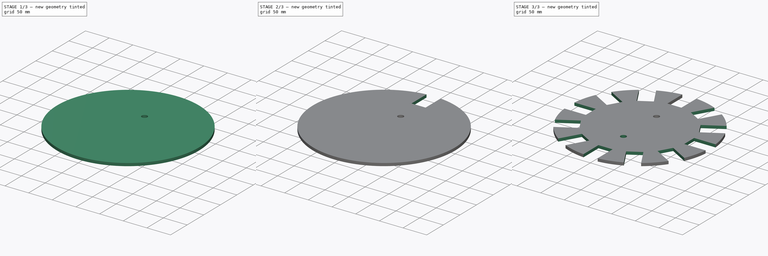
[diagram: build sequence overview — one tinted view per stage of 3, left to right]
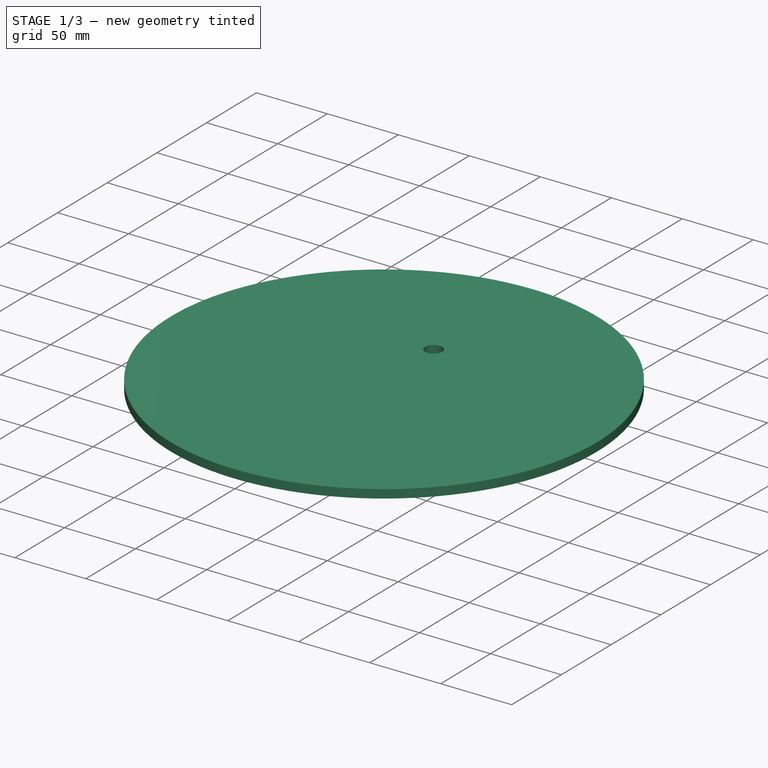
[diagram: stage 1 of 3 — iso view after this stage's code; geometry added in this stage tinted green]
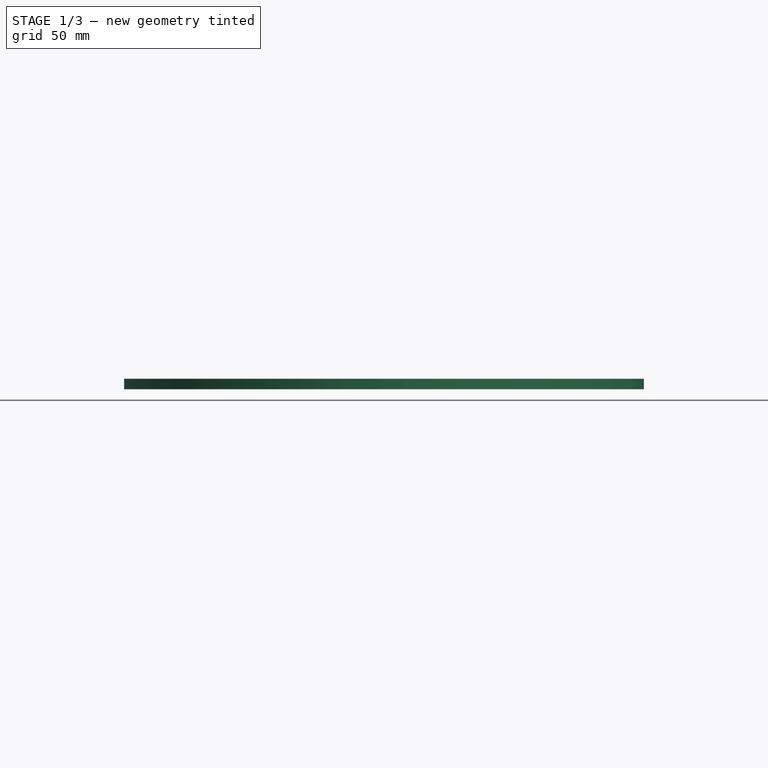
[diagram: stage 1 of 3 — front view after this stage's code; geometry added in this stage tinted green]
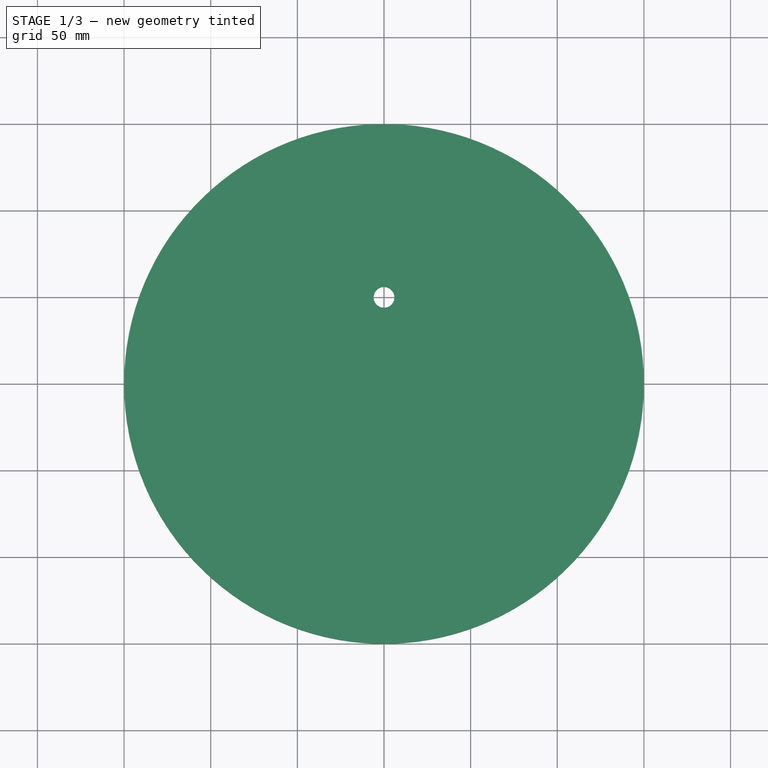
[diagram: stage 1 of 3 — top view after this stage's code; geometry added in this stage tinted green]
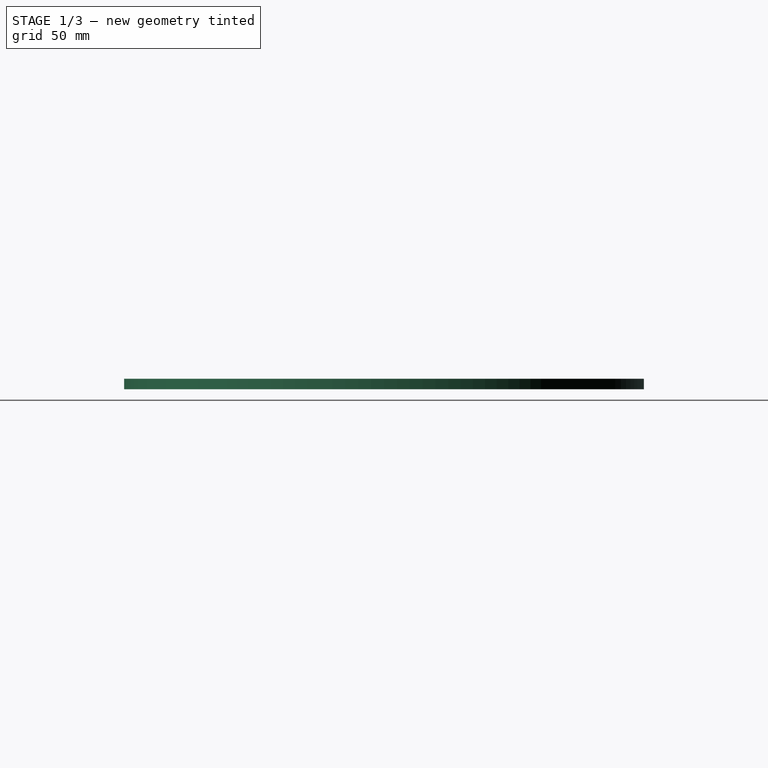
[diagram: stage 1 of 3 — right view after this stage's code; geometry added in this stage tinted green]
FCSTD DOCUMENT  (FreeCAD 0.20R29177 (Git))
Label: Rotor_MagnetJig_Inner
License: All rights reserved
LicenseURL: http://en.wikipedia.org/wiki/All_rights_reserved
objects: Sketcher::SketchObject×3, PartDesign::Pocket×2, PartDesign::PolarPattern×2, PartDesign::Pad×1, Spreadsheet::Sheet×1, PartDesign::Body×1
note: 12 computed .brp shape members not serialized (recipe doc carries the construction recipe); baked Part::Feature solids carry a one-line shape summary decoded from their .brp
EXTERNAL_REF file=../../../Master_of_Puppets.FCStd obj=Alternator
EXTERNAL_REF file=../../../Master_of_Puppets.FCStd obj=Hub
EXTERNAL_REF file=../../../Master_of_Puppets.FCStd obj=Spreadsheet

FEATURE [Sketcher::SketchObject] Sketch  label="RotorDiskSketch"
  FullyConstrained = true
  MapMode = 5
  Support = -> [XY_Plane001]
  expr: Constraints[1] = Spreadsheet.RotorDiskRadius
  sketch-geometry (1):
    g0: Circle CenterX=0 CenterY=0 CenterZ=0 NormalX=0 NormalY=0 NormalZ=1 AngleXU=0 Radius=150
  constraints (2):
    c: Coincident(g0,g-1)
    c: Radius(g0) = 150
FEATURE [PartDesign::Pad] Pad  label="RotorDiskPad"
  AllowMultiFace = false
  Direction = (0,0,1)
  Length = 6
  Length2 = 100
  Profile = -> Sketch
  Type = 0
  expr: Length = Spreadsheet.MagnetJigThickness
FEATURE [Sketcher::SketchObject] Sketch001  label="HolesSketch"
  FullyConstrained = true
  MapMode = 5
  Placement = pos=(0,0,6) rot=(0,0,1;0rad)
  Support = -> [Pad]
  expr: Constraints[1] = Spreadsheet.HubHolesRadius
  expr: Constraints[2] = Spreadsheet.HubPitchCircleRadius
  sketch-geometry (1):
    g0: Circle CenterX=0 CenterY=50 CenterZ=0 NormalX=0 NormalY=0 NormalZ=1 AngleXU=0 Radius=6
  constraints (3):
    c: PointOnObject(g0,g-2)
    c: Radius(g0) = 6
    c: DistanceY(g-1,g0) = 50
FEATURE [PartDesign::Pocket] Pocket  label="HolesPocket"
  AllowMultiFace = false
  BaseFeature = -> Pad
  Direction = (0,0,-1)
  Length = 5
  Length2 = 100
  Profile = -> Sketch001
  Type = 1
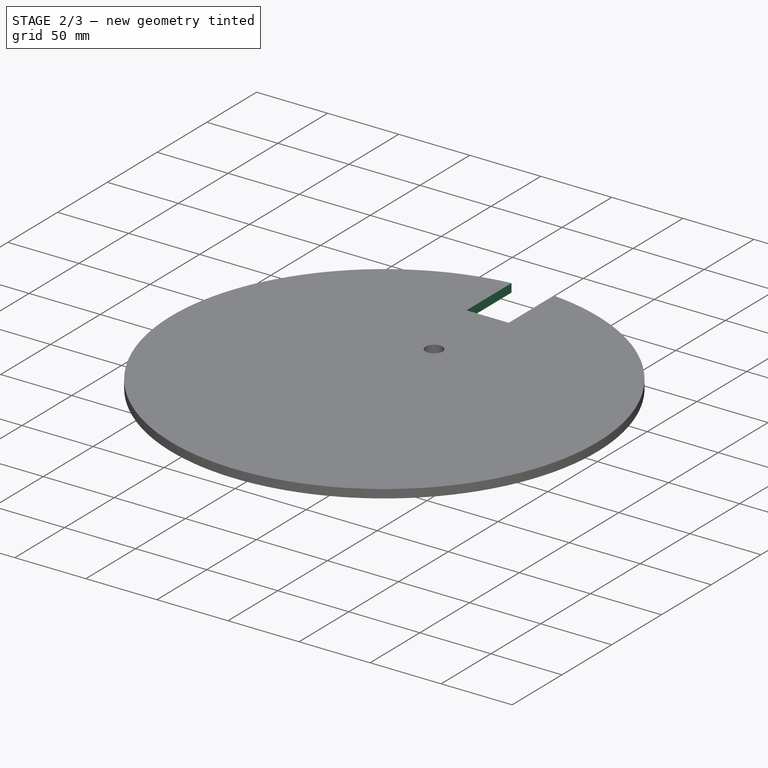
[diagram: stage 2 of 3 — iso view after this stage's code; geometry added in this stage tinted green]
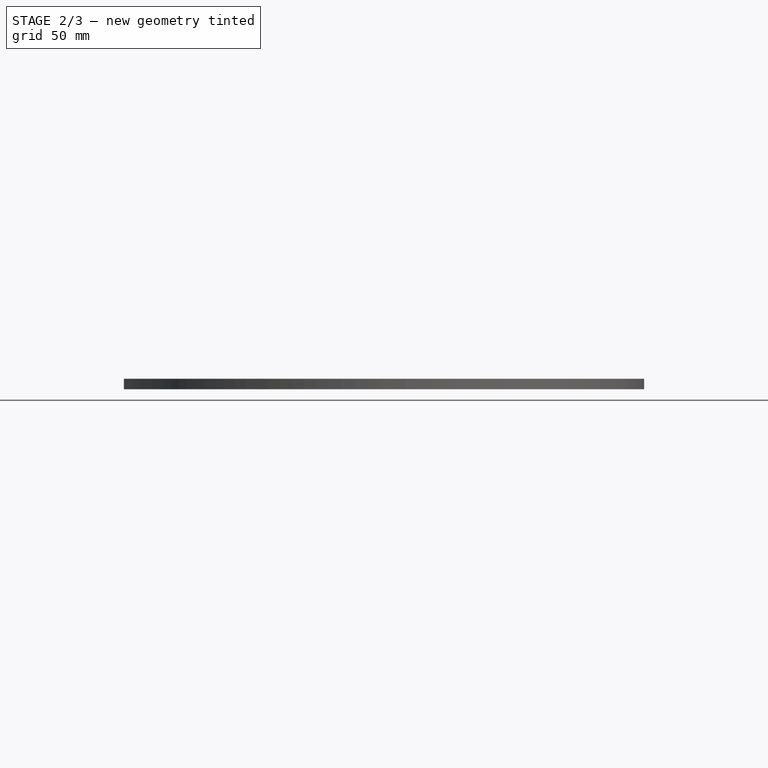
[diagram: stage 2 of 3 — front view after this stage's code; geometry added in this stage tinted green]
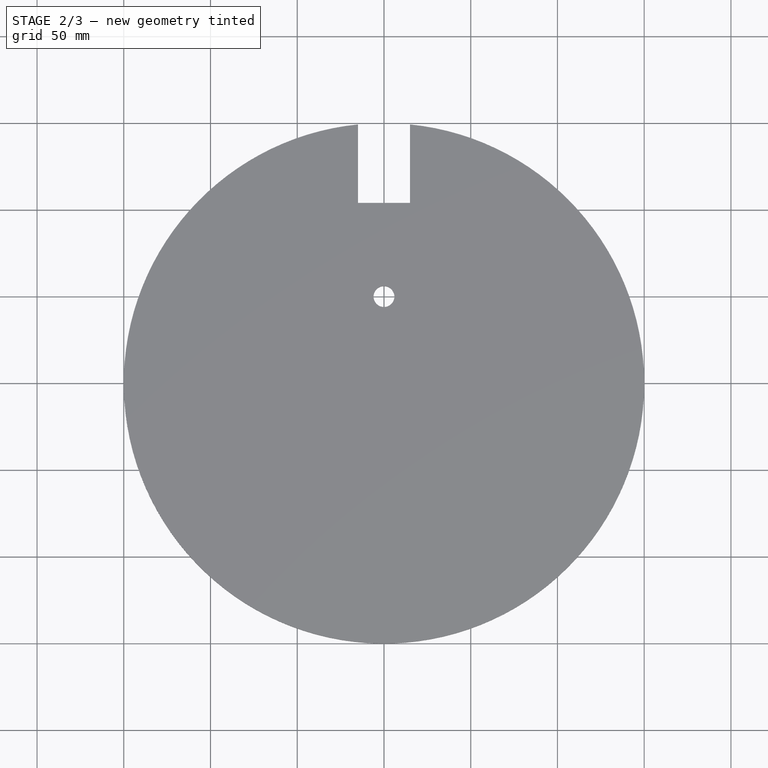
[diagram: stage 2 of 3 — top view after this stage's code; geometry added in this stage tinted green]
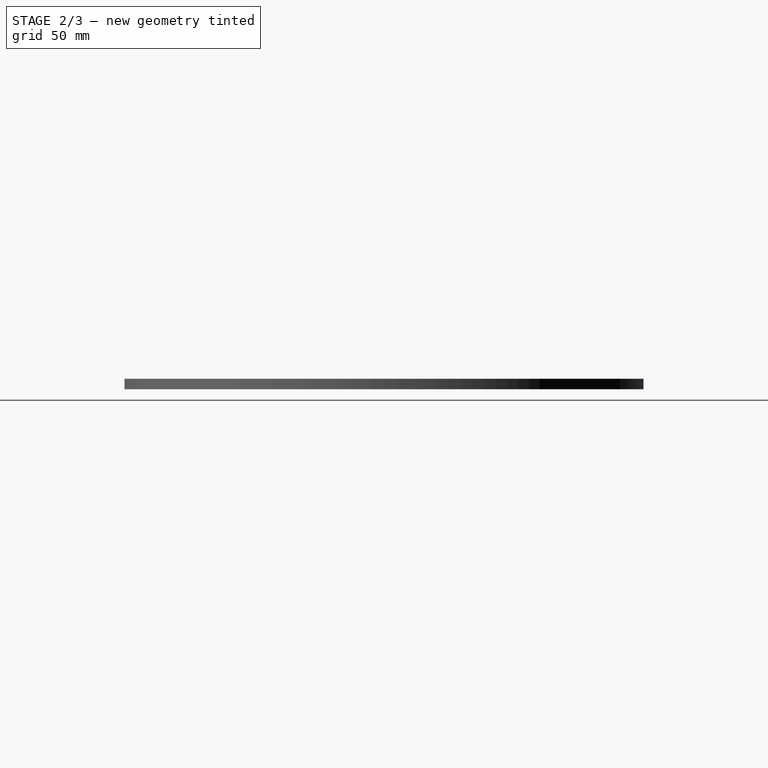
[diagram: stage 2 of 3 — right view after this stage's code; geometry added in this stage tinted green]
FEATURE [Sketcher::SketchObject] Sketch002  label="MagnetSketch"
  FullyConstrained = true
  MapMode = 5
  Placement = pos=(0,0,6) rot=(0,0,1;0rad)
  Support = -> [Pocket]
  expr: Constraints[4] = Spreadsheet.MagnetWidth
  expr: Constraints[5] = Spreadsheet.MagnetLength
  expr: Constraints[7] = Spreadsheet.RotorDiskRadius
  sketch-geometry (5):
    g0: LineSegment StartX=15 StartY=150 StartZ=0 EndX=15 EndY=104 EndZ=0
    g1: LineSegment StartX=15 StartY=104 StartZ=0 EndX=-15 EndY=104 EndZ=0
    g2: LineSegment StartX=-15 StartY=104 StartZ=0 EndX=-15 EndY=150 EndZ=0
    g3: Circle CenterX=0 CenterY=0 CenterZ=0 NormalX=0 NormalY=0 NormalZ=1 AngleXU=0 Radius=150
    g4: LineSegment StartX=-15 StartY=150 StartZ=0 EndX=15 EndY=150 EndZ=0
  constraints (13):
    c: Coincident(g0,g1)
    c: Coincident(g1,g2)
    c: Vertical(g0)
    c: Vertical(g2)
    c: DistanceX(g2,g0) = 30
    c: DistanceY(g2,g2) = 46
    c: Coincident(g3,g-1)
    c: Radius(g3) = 150
    c: Coincident(g4,g2)
    c: Coincident(g4,g0)
    c: Horizontal(g4)
    c: Tangent(g4,g3)
    c: Symmetric(g0,g1,g-2)
FEATURE [PartDesign::Pocket] Pocket001  label="MagnetPocket"
  AllowMultiFace = false
  BaseFeature = -> Pocket
  Direction = (0,0,-1)
  Length = 5
  Length2 = 100
  Profile = -> Sketch002
  Type = 1
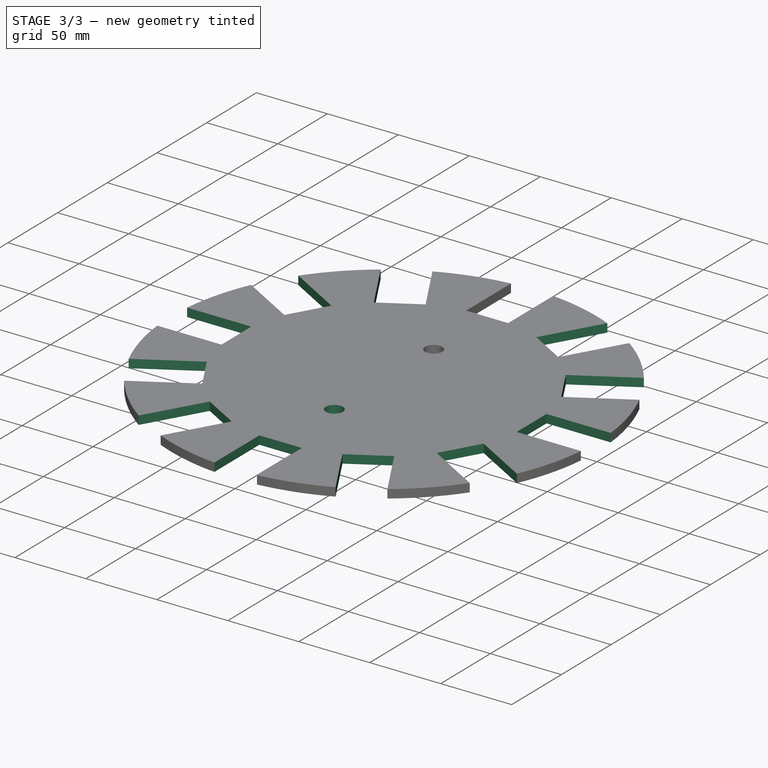
[diagram: stage 3 of 3 — iso view after this stage's code; geometry added in this stage tinted green]
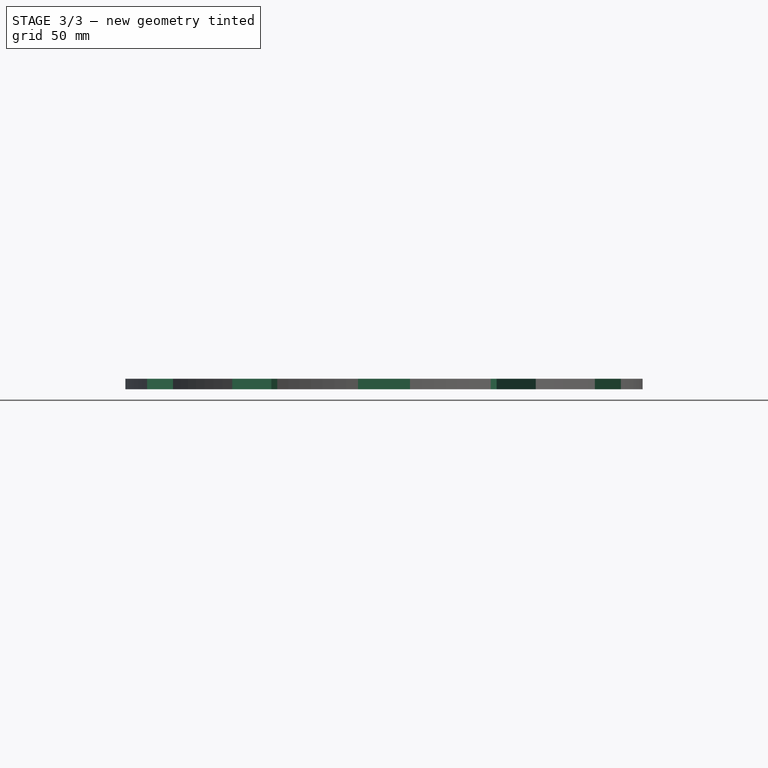
[diagram: stage 3 of 3 — front view after this stage's code; geometry added in this stage tinted green]
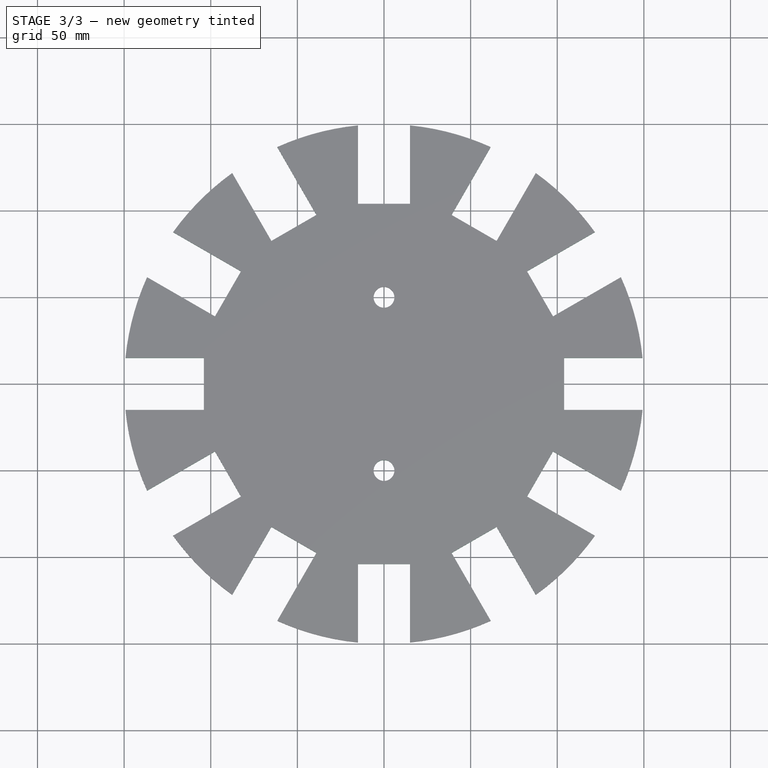
[diagram: stage 3 of 3 — top view after this stage's code; geometry added in this stage tinted green]
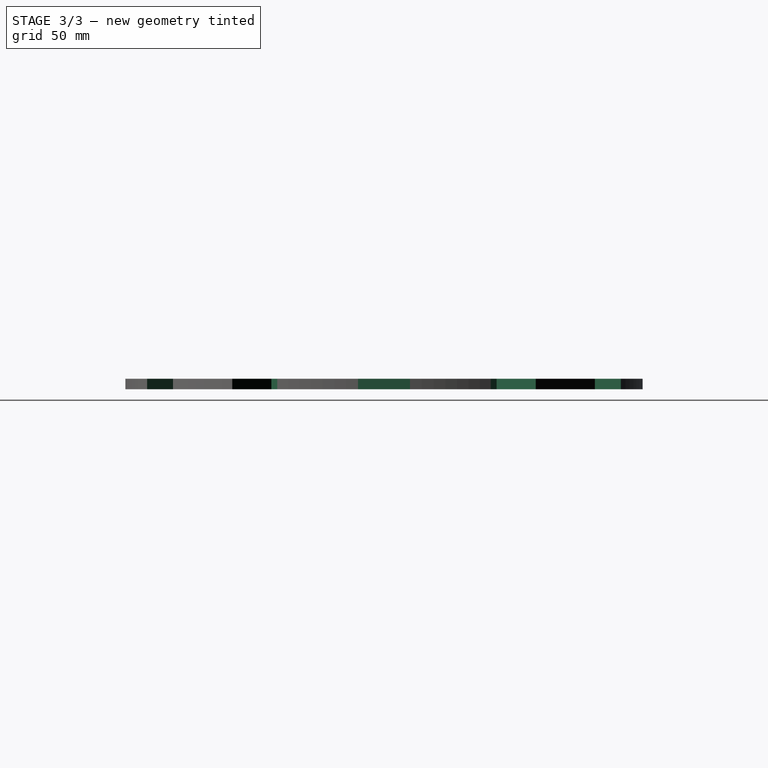
[diagram: stage 3 of 3 — right view after this stage's code; geometry added in this stage tinted green]
FEATURE [PartDesign::PolarPattern] PolarPattern  label="MagnetPolarPattern"
  Angle = 360
  Axis = -> Sketch002 [N_Axis]
  BaseFeature = -> Pocket001
  Occurrences = 12
  Originals = -> [Pocket001]
  expr: Occurrences = Spreadsheet.NumberMagnet
FEATURE [Spreadsheet::Sheet] Spreadsheet
  cells = A1=Inputs; A2=RotorDiskRadius; B2(RotorDiskRadius)==Master_of_Puppets#Spreadsheet.RotorDiskRadius; A3=HubHolesRadius; B3(HubHolesRadius)==Master_of_Puppets#Hub.HubHolesRadius; A4=HubPitchCircleRadius; B4(HubPitchCircleRadius)==Master_of_Puppets#Hub.HubPitchCircleRadius; A5=MagnetWidth; B5(MagnetWidth)==Master_of_Puppets#Spreadsheet.MagnetWidth; A6=MagnetLength; B6(MagnetLength)==Master_of_Puppets#Spreadsheet.MagnetLength; A7=NumberMagnet; B7(NumberMagnet)==Master_of_Puppets#Spreadsheet.NumberMagnet; A8=NumberOfRotorMoldBolts; B8(NumberOfRotorMoldBolts)==Master_of_Puppets#Alternator.NumberOfRotorMoldBolts; A9=MagnetJigThickness; B9(MagnetJigThickness)==Master_of_Puppets#Alternator.MagnetJigThickness
FEATURE [PartDesign::PolarPattern] PolarPattern001  label="HolesPolarPattern"
  Angle = 360
  Axis = -> Sketch001 [N_Axis]
  BaseFeature = -> PolarPattern
  Occurrences = 2
  Originals = -> [Pocket]
  expr: Occurrences = Spreadsheet.NumberOfRotorMoldBolts
FEATURE [PartDesign::Body] PolarPatternBody  label="Rotor_MagnetJig"
  Group = -> [Sketch,Pad,Sketch001,Pocket,Sketch002,Pocket001,PolarPattern,PolarPattern001]
  Openafpm_Flat = true
  Origin = -> Origin001
  Tip = -> PolarPattern001
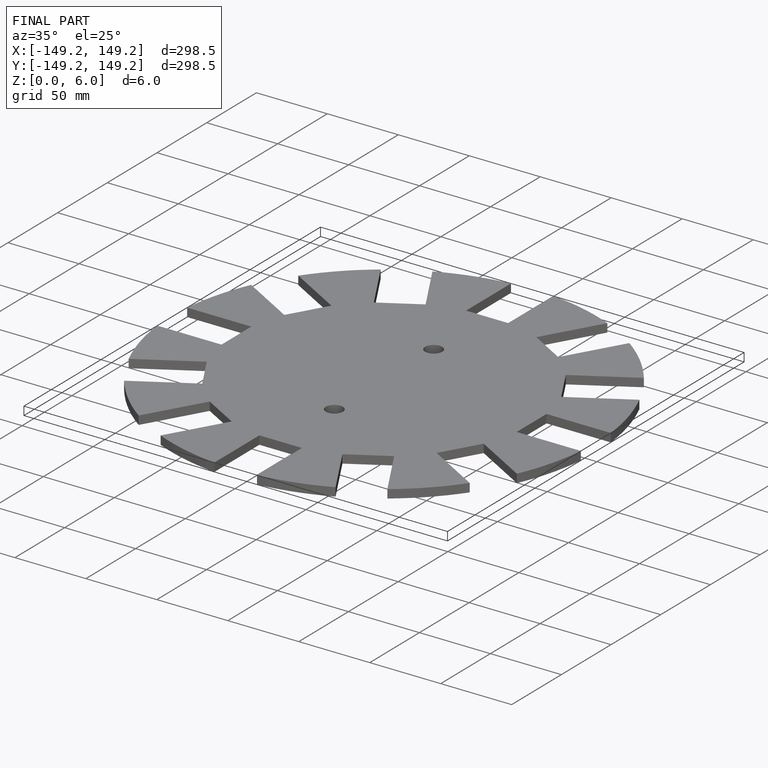
[diagram: finished part — iso view with bounding-box wireframe]
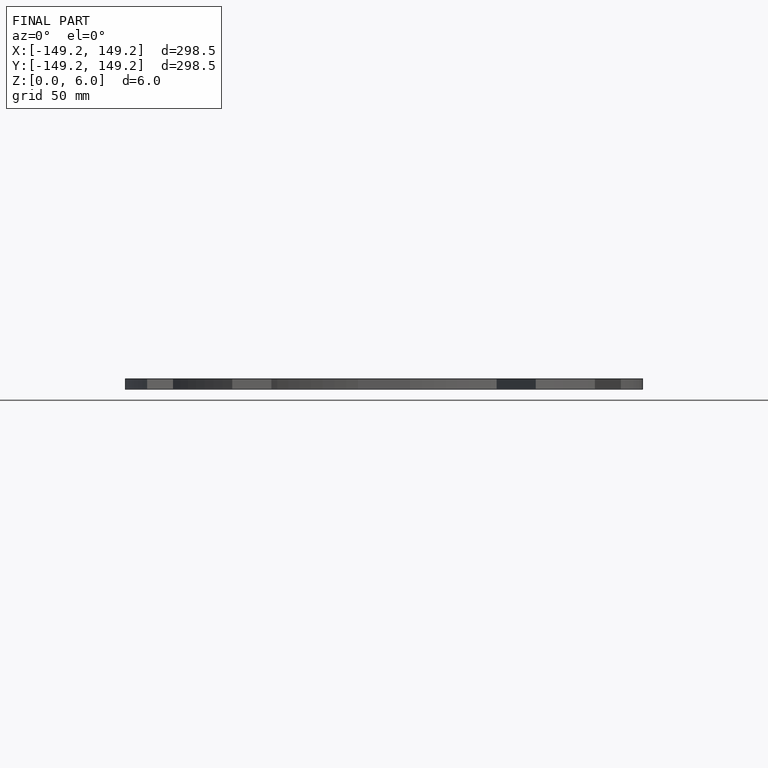
[diagram: finished part — front view with bounding-box wireframe]
